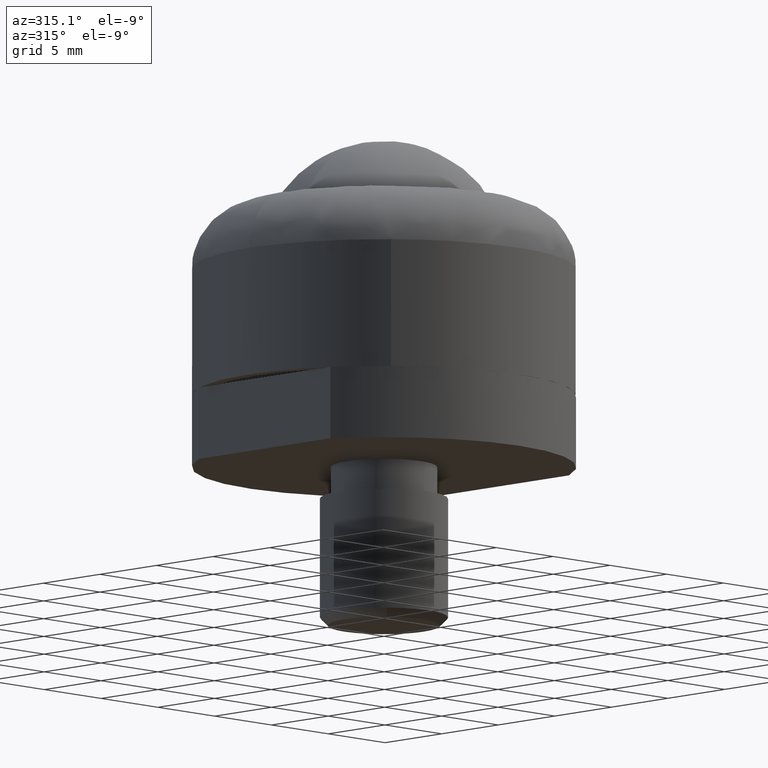
[diagram: clean part render]
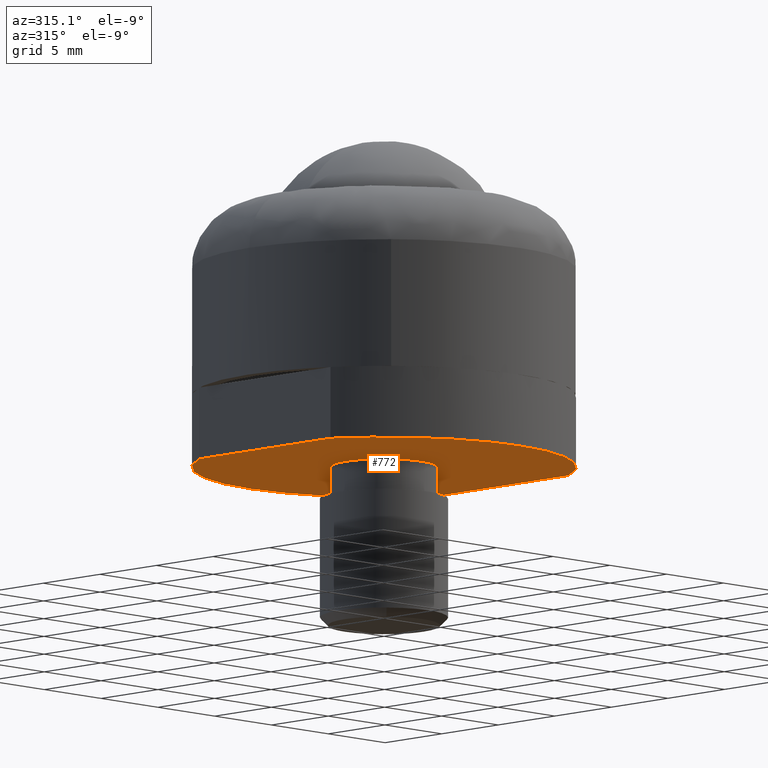
[diagram: same view with one face highlighted and labeled with its STEP entity id]
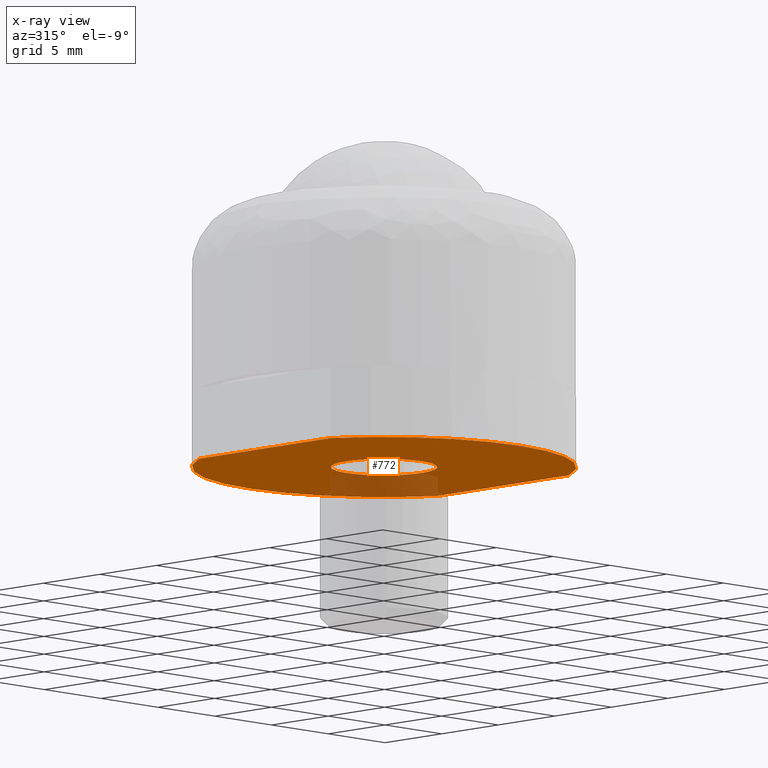
[diagram: x-ray of the same camera — body ghosted, the highlighted face saturated]
A machine part, auxiliary view. The second image highlights one B-rep face of the part: STEP entity #772.
The next image is the same camera in x-ray: the body ghosted, the highlighted face saturated — about 15% of this face is hidden behind the body in this view.
In plain terms, the highlighted face is a freeform B-spline surface patch.
Its self-contained STEP definition (entity closure, byte-faithful):
#510=CARTESIAN_POINT('',(2.410781670074012,-2.287746325930898,-4.500000000000000));
#511=VERTEX_POINT('',#510);
#517=CARTESIAN_POINT('',(-0.000000444371014,-3.323499999999476,-4.500000000000000));
#518=VERTEX_POINT('',#517);
#519=CARTESIAN_POINT('',(2.410781670074012,-2.287746325930898,-4.500000000000000));
#520=CARTESIAN_POINT('',(2.236748829654134,-2.471203440939727,-4.500000000000012));
#521=CARTESIAN_POINT('',(1.835702522624590,-2.807193671617304,-4.499999999999977));
#522=CARTESIAN_POINT('',(1.253284877570124,-3.097839460523918,-4.500000000000027));
#523=CARTESIAN_POINT('',(0.632151529946505,-3.279981811991341,-4.499999999999968));
#524=CARTESIAN_POINT('',(0.252875813123256,-3.323556713718630,-4.500000000000013));
#525=CARTESIAN_POINT('',(-0.000000444371014,-3.323499999999476,-4.500000000000000));
#526=B_SPLINE_CURVE_WITH_KNOTS('',3,(#519,#520,#521,#522,#523,#524,#525),.UNSPECIFIED.,.F.,.U.,(4,1,1,1,4),(0.000000013517992,0.758615531194267,1.559373317984783,1.938682816943773,2.697298334620137),.UNSPECIFIED.);
#527=EDGE_CURVE('',#511,#518,#526,.T.);
#529=CARTESIAN_POINT('',(-3.323499999999505,0.0,-4.500000000000000));
#530=VERTEX_POINT('',#529);
#531=CARTESIAN_POINT('',(-0.000000444371014,-3.323499999999476,-4.500000000000000));
#532=CARTESIAN_POINT('',(-0.326293959757682,-3.323628909932427,-4.499999999999997));
#533=CARTESIAN_POINT('',(-0.910819565287120,-3.236717821096580,-4.500000000000010));
#534=CARTESIAN_POINT('',(-1.638551763799369,-2.919417497351698,-4.499999999999992));
#535=CARTESIAN_POINT('',(-2.149766001498949,-2.554616232113676,-4.499999999999983));
#536=CARTESIAN_POINT('',(-2.583554706172869,-2.120861567393316,-4.500000000000017));
#537=CARTESIAN_POINT('',(-2.939521610413360,-1.602047065121896,-4.500000000000008));
#538=CARTESIAN_POINT('',(-3.242724836651862,-0.870009787120970,-4.500000000000004));
#539=CARTESIAN_POINT('',(-3.323656034349454,-0.326304125713182,-4.499999999999992));
#540=CARTESIAN_POINT('',(-3.323499999999505,0.0,-4.500000000000000));
#541=B_SPLINE_CURVE_WITH_KNOTS('',3,(#531,#532,#533,#534,#535,#536,#537,#538,#539,#540),.UNSPECIFIED.,.F.,.U.,(4,1,1,1,1,1,1,4),(0.000000049603869,0.978857274861380,1.753789829603237,2.365589485457373,2.854984398221149,3.589143188970047,4.241717981450110,5.220574098330142),.UNSPECIFIED.);
#542=EDGE_CURVE('',#518,#530,#541,.T.);
#544=CARTESIAN_POINT('',(-2.410781670074005,2.287746325930890,-4.500000000000000));
#545=VERTEX_POINT('',#544);
#546=CARTESIAN_POINT('',(-3.323499999999505,0.0,-4.500000000000000));
#547=CARTESIAN_POINT('',(-3.323671966069891,0.341711235545098,-4.500000000000001));
#548=CARTESIAN_POINT('',(-3.231471246213849,0.933002116463309,-4.500000000000003));
#549=CARTESIAN_POINT('',(-2.885395622567465,1.705463310066538,-4.499999999999997));
#550=CARTESIAN_POINT('',(-2.582699809745703,2.106652325114511,-4.500000000000001));
#551=CARTESIAN_POINT('',(-2.410781670074005,2.287746325930890,-4.500000000000000));
#552=B_SPLINE_CURVE_WITH_KNOTS('',3,(#546,#547,#548,#549,#550,#551),.UNSPECIFIED.,.F.,.U.,(4,1,1,4),(0.000000013205879,1.025086896380361,1.774177014686013,2.523276480547876),.UNSPECIFIED.);
#553=EDGE_CURVE('',#530,#545,#552,.T.);
#587=CARTESIAN_POINT('',(0.000000444371057,3.323499999999476,-4.500000000000000));
#588=VERTEX_POINT('',#587);
#589=CARTESIAN_POINT('',(-2.410781670074005,2.287746325930890,-4.500000000000000));
#590=CARTESIAN_POINT('',(-2.188451417854174,2.522227386068264,-4.500000000000010));
#591=CARTESIAN_POINT('',(-1.775182453799368,2.846513581006512,-4.499999999999996));
#592=CARTESIAN_POINT('',(-1.185750295604679,3.117599348058747,-4.500000000000004));
#593=CARTESIAN_POINT('',(-0.632151441130561,3.279982569497344,-4.500000000000011));
#594=CARTESIAN_POINT('',(-0.252877055655322,3.323558482833006,-4.499999999999987));
#595=CARTESIAN_POINT('',(0.000000444371057,3.323499999999476,-4.500000000000000));
#596=B_SPLINE_CURVE_WITH_KNOTS('',3,(#589,#590,#591,#592,#593,#594,#595),.UNSPECIFIED.,.F.,.U.,(4,1,1,1,4),(0.000000013517838,0.969342431431405,1.559373317984740,1.938682816943765,2.697298334620176),.UNSPECIFIED.);
#597=EDGE_CURVE('',#545,#588,#596,.T.);
#599=CARTESIAN_POINT('',(3.323499999999505,0.0,-4.500000000000000));
#600=VERTEX_POINT('',#599);
#601=CARTESIAN_POINT('',(0.000000444371057,3.323499999999476,-4.500000000000000));
#602=CARTESIAN_POINT('',(0.217524921726768,3.323528524137633,-4.500000000000005));
#603=CARTESIAN_POINT('',(0.598175327354397,3.285983792406162,-4.500000000000000));
#604=CARTESIAN_POINT('',(1.215697009453769,3.115139633541715,-4.499999999999999));
#605=CARTESIAN_POINT('',(1.730766133622171,2.859821529674314,-4.499999999999997));
#606=CARTESIAN_POINT('',(2.231910112331256,2.483325616598218,-4.500000000000005));
#607=CARTESIAN_POINT('',(2.618116491587329,2.077689034514160,-4.500000000000001));
#608=CARTESIAN_POINT('',(2.960404603656381,1.551544895096395,-4.499999999999995));
#609=CARTESIAN_POINT('',(3.242749947762451,0.870020169066741,-4.500000000000011));
#610=CARTESIAN_POINT('',(3.323641082493507,0.326299951995641,-4.499999999999998));
#611=CARTESIAN_POINT('',(3.323499999999505,0.0,-4.500000000000000));
#612=B_SPLINE_CURVE_WITH_KNOTS('',3,(#601,#602,#603,#604,#605,#606,#607,#608,#609,#610,#611),.UNSPECIFIED.,.F.,.U.,(4,1,1,1,1,1,1,1,4),(0.000000049603734,0.652571498934749,1.142000156060665,1.916933467693049,2.365589485457209,3.018130037182007,3.589143188969988,4.241717981450096,5.220574098330123),.UNSPECIFIED.);
#613=EDGE_CURVE('',#588,#600,#612,.T.);
#615=CARTESIAN_POINT('',(3.323499999999505,0.0,-4.500000000000000));
#616=CARTESIAN_POINT('',(3.323527790614506,-0.249697897630274,-4.500000000000001));
#617=CARTESIAN_POINT('',(3.262551926657424,-0.788516657763475,-4.499999999999993));
#618=CARTESIAN_POINT('',(2.967007698540687,-1.583639504046248,-4.500000000000015));
#619=CARTESIAN_POINT('',(2.618912177260321,-2.068540877210439,-4.499999999999981));
#620=CARTESIAN_POINT('',(2.410781670074012,-2.287746325930898,-4.500000000000000));
#621=B_SPLINE_CURVE_WITH_KNOTS('',3,(#615,#616,#617,#618,#619,#620),.UNSPECIFIED.,.F.,.U.,(4,1,1,4),(0.000000013205737,0.749099479074308,1.616469290267762,2.523276480547888),.UNSPECIFIED.);
#622=EDGE_CURVE('',#600,#511,#621,.T.);
#694=CARTESIAN_POINT('',(-11.548949959297930,-13.198771534395220,-4.500000000000000));
#695=CARTESIAN_POINT('',(11.548950522561819,-13.198771534395220,-4.500000000000000));
#696=CARTESIAN_POINT('',(-11.548949959297930,13.198793850374219,-4.500000000000000));
#697=CARTESIAN_POINT('',(11.548950522561819,13.198793850374219,-4.500000000000000));
#698=B_SPLINE_SURFACE_WITH_KNOTS('',1,1,((#694,#696),(#695,#697)),.UNSPECIFIED.,.F.,.F.,.U.,(2,2),(2,2),(0.0,23.097900481859750),(0.0,26.397565384769429),.UNSPECIFIED.);
#699=CARTESIAN_POINT('',(-10.500000000000000,5.809475019311289,-4.499999999999949));
#700=VERTEX_POINT('',#699);
#701=CARTESIAN_POINT('',(-10.500000000000000,-5.809475019311289,-4.499999999999949));
#702=VERTEX_POINT('',#701);
#703=CARTESIAN_POINT('',(-10.500000000000000,5.809475019311289,-4.499999999999949));
#704=CARTESIAN_POINT('',(-10.500000000000000,-5.809475019311289,-4.499999999999949));
#705=QUASI_UNIFORM_CURVE('',1,(#703,#704),.UNSPECIFIED.,.F.,.U.);
#706=EDGE_CURVE('',#700,#702,#705,.T.);
#707=ORIENTED_EDGE('',*,*,#706,.F.);
#708=CARTESIAN_POINT('',(10.500000000000000,5.809475019311130,-4.499999999999949));
#709=VERTEX_POINT('',#708);
#710=CARTESIAN_POINT('',(-10.500000000000000,5.809475019311289,-4.499999999999949));
#711=CARTESIAN_POINT('',(-10.161563631392649,6.421299190034111,-4.499999999999938));
#712=CARTESIAN_POINT('',(-9.470634936564041,7.446886776661034,-4.499999999999981));
#713=CARTESIAN_POINT('',(-8.292006311828548,8.720334388481659,-4.499999999999911));
#714=CARTESIAN_POINT('',(-7.139029377531418,9.681709138700764,-4.499999999999985));
#715=CARTESIAN_POINT('',(-5.823015827243684,10.533323157230610,-4.499999999999926));
#716=CARTESIAN_POINT('',(-4.373817234793475,11.217641647163139,-4.499999999999982));
#717=CARTESIAN_POINT('',(-2.843477146380789,11.690421801986419,-4.499999999999925));
#718=CARTESIAN_POINT('',(-1.529748062289728,11.922418112520900,-4.499999999999969));
#719=CARTESIAN_POINT('',(-0.266999686769659,12.017186505373971,-4.499999999999945));
#720=CARTESIAN_POINT('',(0.966610006564828,11.986386109214889,-4.499999999999941));
#721=CARTESIAN_POINT('',(2.254759852485893,11.808341405150991,-4.499999999999970));
#722=CARTESIAN_POINT('',(3.517187281385928,11.497550977230240,-4.499999999999932));
#723=CARTESIAN_POINT('',(4.707883186713018,11.063458592354429,-4.499999999999972));
#724=CARTESIAN_POINT('',(5.963845022407126,10.444632315063840,-4.500000000000037));
#725=CARTESIAN_POINT('',(7.140473307110120,9.683238399429168,-4.499999999999868));
#726=CARTESIAN_POINT('',(8.289138323785000,8.717304988299311,-4.500000000000066));
#727=CARTESIAN_POINT('',(9.449984075608574,7.473508493710113,-4.499999999999640));
#728=CARTESIAN_POINT('',(10.145458056323321,6.450444676242321,-4.500000000000362));
#729=CARTESIAN_POINT('',(10.500000000000000,5.809475019311130,-4.499999999999949));
#730=B_SPLINE_CURVE_WITH_KNOTS('',3,(#710,#711,#712,#713,#714,#715,#716,#717,#718,#719,#720,#721,#722,#723,#724,#725,#726,#727,#728,#729),.UNSPECIFIED.,.F.,.U.,(4,1,1,1,1,1,1,1,1,1,1,1,1,1,1,1,1,4),(0.000000011116303,2.097566297518672,3.695729392961187,5.194014781943931,6.592404584681599,8.390341121390950,9.988493996204911,11.386889570018811,12.385735273569139,13.784110993615270,15.082609349465290,16.281224665462041,17.679622594680161,18.878244475593039,20.476409505159360,21.874800075603940,23.373075697970741,25.570533412326359),.UNSPECIFIED.);
#731=EDGE_CURVE('',#700,#709,#730,.T.);
#732=ORIENTED_EDGE('',*,*,#731,.T.);
#733=CARTESIAN_POINT('',(10.500000000000000,-5.809475019311119,-4.499999999999949));
#734=VERTEX_POINT('',#733);
#735=CARTESIAN_POINT('',(10.500000000000000,-5.809475019311119,-4.499999999999949));
#736=CARTESIAN_POINT('',(10.500000000000000,5.809475019311130,-4.499999999999949));
#737=QUASI_UNIFORM_CURVE('',1,(#735,#736),.UNSPECIFIED.,.F.,.U.);
#738=EDGE_CURVE('',#734,#709,#737,.T.);
#739=ORIENTED_EDGE('',*,*,#738,.F.);
#740=CARTESIAN_POINT('',(10.500000000000000,-5.809475019311119,-4.499999999999949));
#741=CARTESIAN_POINT('',(10.306580080057170,-6.159064642377233,-4.499999999999951));
#742=CARTESIAN_POINT('',(9.796918619544512,-6.980567844483099,-4.499999999999948));
#743=CARTESIAN_POINT('',(8.940684268666471,-8.048116840165527,-4.499999999999941));
#744=CARTESIAN_POINT('',(7.844162444992890,-9.120134974428892,-4.499999999999953));
#745=CARTESIAN_POINT('',(6.651548536913130,-10.033226292389619,-4.499999999999950));
#746=CARTESIAN_POINT('',(5.055282125978362,-10.938904452952491,-4.499999999999949));
#747=CARTESIAN_POINT('',(3.426882042466168,-11.548023384752030,-4.499999999999950));
#748=CARTESIAN_POINT('',(1.925774890005042,-11.864860262984520,-4.499999999999946));
#749=CARTESIAN_POINT('',(0.401856121817463,-12.030494418689241,-4.499999999999958));
#750=CARTESIAN_POINT('',(-1.235911114560167,-11.989575483817740,-4.499999999999936));
#751=CARTESIAN_POINT('',(-3.039611285293274,-11.647714288592450,-4.499999999999973));
#752=CARTESIAN_POINT('',(-4.652540386581641,-11.104931822037310,-4.499999999999936));
#753=CARTESIAN_POINT('',(-6.084205965603507,-10.384644058993221,-4.500000000000120));
#754=CARTESIAN_POINT('',(-7.406086112212381,-9.481631179108350,-4.499999999999814));
#755=CARTESIAN_POINT('',(-8.430875591166439,-8.575232432715371,-4.499999999999969));
#756=CARTESIAN_POINT('',(-9.525167826223411,-7.362902205996499,-4.500000000000088));
#757=CARTESIAN_POINT('',(-10.145450267753970,-6.450440872034873,-4.499999999999696));
#758=CARTESIAN_POINT('',(-10.500000000000000,-5.809475019311289,-4.499999999999949));
#759=B_SPLINE_CURVE_WITH_KNOTS('',3,(#740,#741,#742,#743,#744,#745,#746,#747,#748,#749,#750,#751,#752,#753,#754,#755,#756,#757,#758),.UNSPECIFIED.,.F.,.U.,(4,1,1,1,1,1,1,1,1,1,1,1,1,1,1,1,4),(0.000000011119528,1.198595744234964,2.896659838014369,4.095270138090189,5.793322075740065,7.391482970878876,9.588958937037161,10.987347641166400,11.986199012900769,14.183653664703840,15.881683568720250,17.479853926931991,19.277785618188421,20.676180722390590,22.274335814741370,23.373075697970840,25.570533412326391),.UNSPECIFIED.);
#760=EDGE_CURVE('',#734,#702,#759,.T.);
#761=ORIENTED_EDGE('',*,*,#760,.T.);
#762=EDGE_LOOP('',(#707,#732,#739,#761));
#763=FACE_OUTER_BOUND('',#762,.T.);
#764=ORIENTED_EDGE('',*,*,#542,.F.);
#765=ORIENTED_EDGE('',*,*,#527,.F.);
#766=ORIENTED_EDGE('',*,*,#622,.F.);
#767=ORIENTED_EDGE('',*,*,#613,.F.);
#768=ORIENTED_EDGE('',*,*,#597,.F.);
#769=ORIENTED_EDGE('',*,*,#553,.F.);
#770=EDGE_LOOP('',(#764,#765,#766,#767,#768,#769));
#771=FACE_BOUND('',#770,.T.);
#772=ADVANCED_FACE('',(#763,#771),#698,.F.);